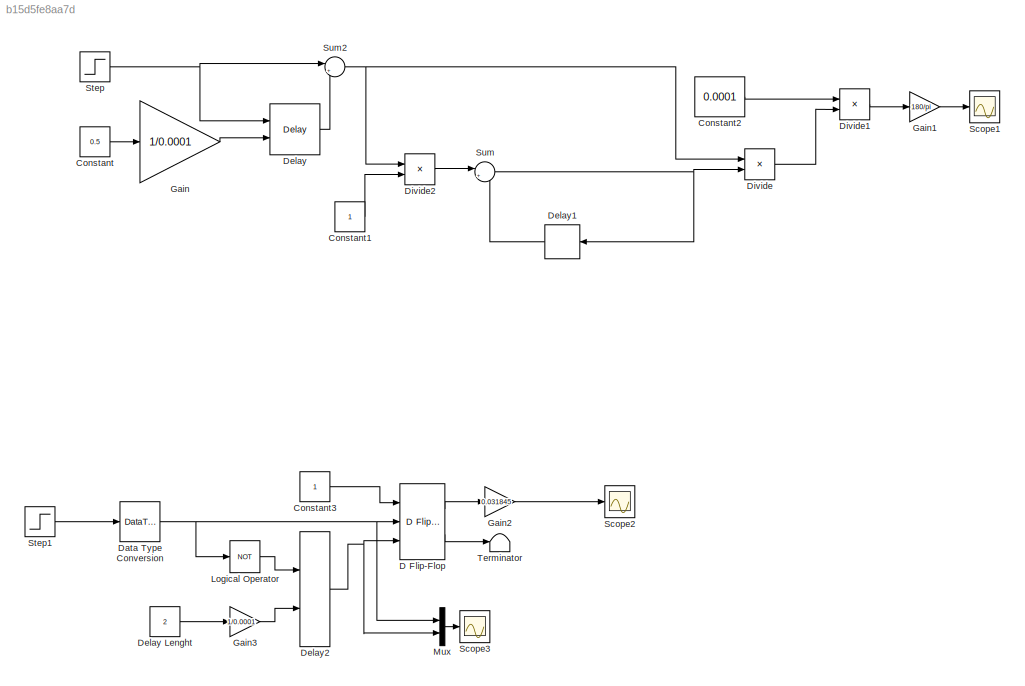
MODEL slx_b15d5fe8aa7d
KIND model
CONFIG AbsTol = auto
CONFIG FixedStep = 0.0001
CONFIG MaxStep = auto
CONFIG MinStep = auto
CONFIG PostLoadFcn = , if any(exist('dsrtsu_mdlpostloadfcn', 'file') == [2, 3, 6]), try dsrtsu_mdlpostloadfcn('Execute', bdroot); catch fprintf('Error in PostLoadFcn (dsrtsu_mdlpostloadfcn) for model "%s":\n %s\n', bdroot, lasterr); end, end, \n
CONFIG RelTol = 1e-3
CONFIG SampleTimeConstraint = Unconstrained
CONFIG Solver = ode1
CONFIG SolverMode = Auto
CONFIG SolverName = ode1
CONFIG StartTime = 0.0
CONFIG StopTime = 5
BLOCK [Constant] Constant
  Commented = on
  Value = 0.5
BLOCK [Constant] Constant1
  Commented = on
BLOCK [Constant] Constant2
  Commented = on
  Value = 0.0001
BLOCK [Constant] Constant3
  OutDataTypeStr = boolean
BLOCK [Reference] D Flip-Flop  REF=simulink_extras/Flip Flops/D Flip-Flop
  Ports = [3, 2]
  SourceBlock = simulink_extras/Flip Flops/D Flip-Flop
  SourceType = DFlipFlop
BLOCK [DataTypeConversion] Data Type Conversion
  OutDataTypeStr = boolean
  RndMeth = Floor
  SaturateOnIntegerOverflow = off
BLOCK [Delay] Delay
  Commented = on
  DelayLength = 1/0.001
  DelayLengthSource = Input port
  DelayLengthUpperLimit = 100000
  InitialCondition = 0
  InputPortMap = u0,p1
  Ports = [2, 1]
BLOCK [Constant] Delay Lenght
  OutDataTypeStr = double
  Value = 2
BLOCK [Delay] Delay1
  Commented = on
  DelayLength = 1
  InitialCondition = 0
  InputPortMap = u0
  Ports = [1, 1]
BLOCK [Delay] Delay2
  DelayLengthSource = Input port
  DelayLengthUpperLimit = 100000
  InitialCondition = 1
  InputPortMap = u0,p1
  Ports = [2, 1]
BLOCK [Product] Divide
  Commented = on
  InputSameDT = off
  Inputs = **
  OutDataTypeStr = Inherit: Inherit via internal rule
  Ports = [2, 1]
  RndMeth = Floor
  SaturateOnIntegerOverflow = off
BLOCK [Product] Divide1
  Commented = on
  InputSameDT = off
  Inputs = **
  OutDataTypeStr = Inherit: Inherit via internal rule
  Ports = [2, 1]
  RndMeth = Floor
  SaturateOnIntegerOverflow = off
BLOCK [Product] Divide2
  Commented = on
  InputSameDT = off
  Inputs = **
  OutDataTypeStr = Inherit: Inherit via internal rule
  Ports = [2, 1]
  RndMeth = Floor
  SaturateOnIntegerOverflow = off
BLOCK [Gain] Gain
  Commented = on
  Gain = 1/0.0001
  OutDataTypeStr = Inherit: Inherit via internal rule
  ParamDataTypeStr = Inherit: Inherit via internal rule
  SaturateOnIntegerOverflow = off
BLOCK [Gain] Gain1
  Commented = on
  Gain = 180/pi
  OutDataTypeStr = Inherit: Inherit via internal rule
  ParamDataTypeStr = Inherit: Inherit via internal rule
  SaturateOnIntegerOverflow = off
BLOCK [Gain] Gain2
  Gain = 0.031845
  OutDataTypeStr = Inherit: Inherit via internal rule
  ParamDataTypeStr = double
  SaturateOnIntegerOverflow = off
BLOCK [Gain] Gain3
  Gain = 1/0.0001
  OutDataTypeStr = Inherit: Inherit via internal rule
  ParamDataTypeStr = Inherit: Inherit via internal rule
  SaturateOnIntegerOverflow = off
BLOCK [Logic] Logical Operator
  AllPortsSameDT = off
  Operator = NOT
  OutDataTypeStr = boolean
  Ports = [1, 1]
BLOCK [Mux] Mux
  DisplayOption = bar
  Inputs = 2
  Ports = [2, 1]
BLOCK [Scope] Scope1
  Commented = on
  Floating = off
  NumInputPorts = 1
  Ports = [1]
  YMax = 30
  YMin = 0
BLOCK [Scope] Scope2
  DataFormat = StructureWithTime
  Floating = off
  LimitDataPoints = off
  NumInputPorts = 1
  Ports = [1]
  SaveName = ScopeData1
  YMax = 0.0325
  YMin = 0
BLOCK [Scope] Scope3
  Floating = off
  LimitDataPoints = off
  NumInputPorts = 1
  Ports = [1]
  SaveName = ScopeData3
  TimeRange = 10
  ZoomMode = xonly
BLOCK [Step] Step
  Commented = on
  SampleTime = 0
BLOCK [Step] Step1
  SampleTime = 0
BLOCK [Sum] Sum
  Commented = on
  IconShape = round
  InputSameDT = off
  Inputs = |++
  OutDataTypeStr = Inherit: Inherit via internal rule
  Ports = [2, 1]
  SaturateOnIntegerOverflow = off
BLOCK [Sum] Sum2
  Commented = on
  IconShape = round
  InputSameDT = off
  Inputs = |+-
  OutDataTypeStr = Inherit: Inherit via internal rule
  Ports = [2, 1]
  SaturateOnIntegerOverflow = off
BLOCK [Terminator] Terminator
LINE Constant1:1 -> Divide2:2
LINE Constant2:1 -> Divide1:1
LINE Constant3:1 -> D Flip-Flop:1
LINE Constant:1 -> Gain:1
LINE D Flip-Flop:1 -> Gain2:1
LINE D Flip-Flop:2 -> Terminator:1
NET Data Type Conversion:1 -> D Flip-Flop:2, Logical Operator:1, Mux:1
LINE Delay Lenght:1 -> Gain3:1
LINE Delay1:1 -> Sum:2
NET Delay2:1 -> D Flip-Flop:3, Mux:2
LINE Delay:1 -> Sum2:2
LINE Divide1:1 -> Gain1:1
LINE Divide2:1 -> Sum:1
LINE Divide:1 -> Divide1:2
LINE Gain1:1 -> Scope1:1
LINE Gain2:1 -> Scope2:1
LINE Gain3:1 -> Delay2:2
LINE Gain:1 -> Delay:2
LINE Logical Operator:1 -> Delay2:1
LINE Mux:1 -> Scope3:1
LINE Step1:1 -> Data Type Conversion:1
NET Step:1 -> Delay:1, Sum2:1
NET Sum2:1 -> Divide2:1, Divide:1
NET Sum:1 -> Delay1:1, Divide:2
note: NET lines group one-source signal fan-out (src -> all destinations, sorted); 1:1 wires keep LINE
